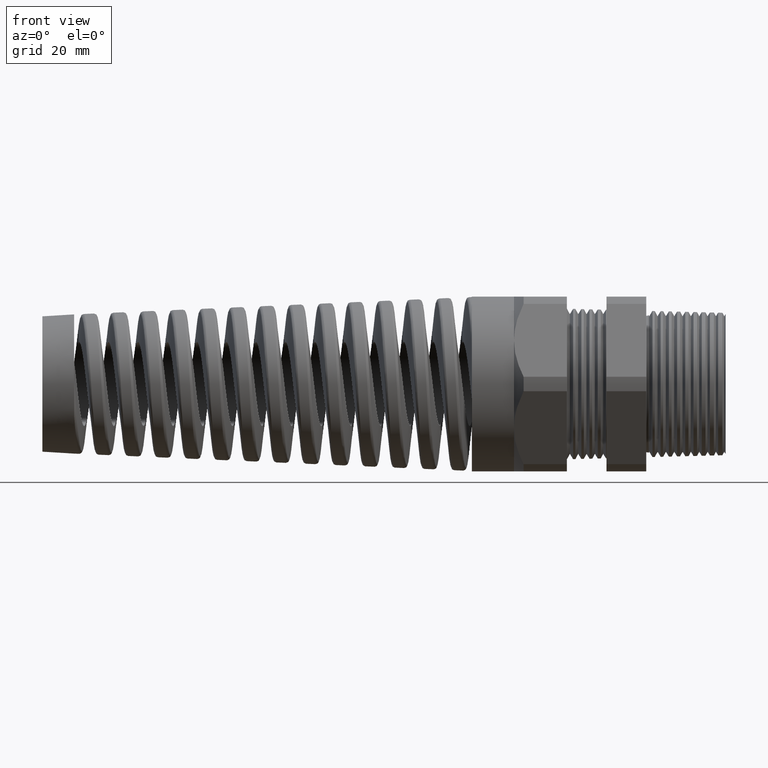
[diagram: clean part render]
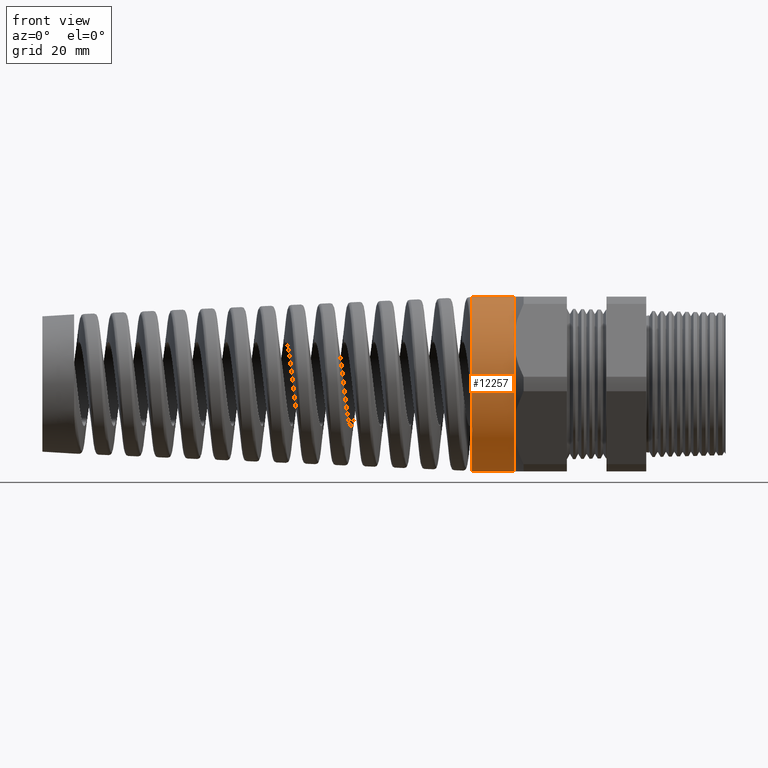
[diagram: same view with one face highlighted and labeled with its STEP entity id]
A machine part, front view. The second image highlights one B-rep face of the part: STEP entity #12257.
In plain terms, the highlighted cylindrical surface (partial cylindrical patch) has radius 16.51 mm, axis along (1, 0, 0).
Its self-contained STEP definition (entity closure, byte-faithful):
#1748 = DIRECTION ( 'NONE',  ( 0.0000000000000000000, 0.0000000000000000000, -1.000000000000000000 ) ) ;
#1749 = DIRECTION ( 'NONE',  ( 1.000000000000000000, 0.0000000000000000000, 0.0000000000000000000 ) ) ;
#1750 = CARTESIAN_POINT ( 'NONE',  ( -1.293779527559055300, 0.0000000000000000000, 0.0000000000000000000 ) ) ;
#1751 = AXIS2_PLACEMENT_3D ( 'NONE', #1750, #1749, #1748 ) ;
#1752 = CIRCLE ( 'NONE', #1751, 0.6500000000000000200 ) ;
#1753 = DIRECTION ( 'NONE',  ( 0.0000000000000000000, 0.0000000000000000000, -1.000000000000000000 ) ) ;
#1754 = DIRECTION ( 'NONE',  ( 1.000000000000000000, 0.0000000000000000000, 0.0000000000000000000 ) ) ;
#1755 = CARTESIAN_POINT ( 'NONE',  ( -1.293779527559055300, 0.0000000000000000000, 0.0000000000000000000 ) ) ;
#1756 = AXIS2_PLACEMENT_3D ( 'NONE', #1755, #1754, #1753 ) ;
#1757 = CIRCLE ( 'NONE', #1756, 0.6500000000000000200 ) ;
#1758 = DIRECTION ( 'NONE',  ( 0.0000000000000000000, 0.0000000000000000000, -1.000000000000000000 ) ) ;
#1759 = DIRECTION ( 'NONE',  ( 1.000000000000000000, 0.0000000000000000000, 0.0000000000000000000 ) ) ;
#1760 = CARTESIAN_POINT ( 'NONE',  ( -1.293779527559055300, 0.0000000000000000000, 0.0000000000000000000 ) ) ;
#1761 = AXIS2_PLACEMENT_3D ( 'NONE', #1760, #1759, #1758 ) ;
#1762 = CIRCLE ( 'NONE', #1761, 0.6500000000000000200 ) ;
#1833 = DIRECTION ( 'NONE',  ( 0.0000000000000000000, 0.0000000000000000000, 1.000000000000000000 ) ) ;
#1834 = DIRECTION ( 'NONE',  ( -1.000000000000000000, 0.0000000000000000000, 0.0000000000000000000 ) ) ;
#1835 = CARTESIAN_POINT ( 'NONE',  ( -1.606986927084337300, 0.0000000000000000000, 0.0000000000000000000 ) ) ;
#1836 = AXIS2_PLACEMENT_3D ( 'NONE', #1835, #1834, #1833 ) ;
#1837 = DIRECTION ( 'NONE',  ( 0.0000000000000000000, 0.0000000000000000000, -1.000000000000000000 ) ) ;
#1838 = DIRECTION ( 'NONE',  ( 1.000000000000000000, 0.0000000000000000000, 0.0000000000000000000 ) ) ;
#1839 = CARTESIAN_POINT ( 'NONE',  ( 0.0000000000000000000, 0.0000000000000000000, 0.0000000000000000000 ) ) ;
#1840 = AXIS2_PLACEMENT_3D ( 'NONE', #1839, #1838, #1837 ) ;
#1841 = CIRCLE ( 'NONE', #1836, 0.6499999999999999100 ) ;
#1842 = CYLINDRICAL_SURFACE ( 'NONE', #1840, 0.6500000000000000200 ) ;
#1843 = FACE_OUTER_BOUND ( 'NONE', #12258, .T. ) ;
#11521 = VERTEX_POINT ( 'NONE', #16195 ) ;
#11522 = VERTEX_POINT ( 'NONE', #16194 ) ;
#11524 = EDGE_CURVE ( 'NONE', #11521, #11526, #16193, .T. ) ;
#11526 = VERTEX_POINT ( 'NONE', #16189 ) ;
#11556 = VERTEX_POINT ( 'NONE', #16200 ) ;
#11558 = EDGE_CURVE ( 'NONE', #11522, #11556, #16199, .T. ) ;
#11737 = VERTEX_POINT ( 'NONE', #16590 ) ;
#11747 = VERTEX_POINT ( 'NONE', #16621 ) ;
#12194 = ORIENTED_EDGE ( 'NONE', *, *, #12195, .F. ) ;
#12195 = EDGE_CURVE ( 'NONE', #11737, #11556, #1762, .T. ) ;
#12196 = ORIENTED_EDGE ( 'NONE', *, *, #12197, .F. ) ;
#12197 = EDGE_CURVE ( 'NONE', #11747, #11737, #1757, .T. ) ;
#12198 = ORIENTED_EDGE ( 'NONE', *, *, #12199, .F. ) ;
#12199 = EDGE_CURVE ( 'NONE', #11526, #11747, #1752, .T. ) ;
#12257 = ADVANCED_FACE ( 'NONE', ( #1843 ), #1842, .T. ) ;
#12258 = EDGE_LOOP ( 'NONE', ( #12259, #12260, #12262, #12194, #12196, #12198 ) ) ;
#12259 = ORIENTED_EDGE ( 'NONE', *, *, #11524, .F. ) ;
#12260 = ORIENTED_EDGE ( 'NONE', *, *, #12261, .F. ) ;
#12261 = EDGE_CURVE ( 'NONE', #11522, #11521, #1841, .T. ) ;
#12262 = ORIENTED_EDGE ( 'NONE', *, *, #11558, .T. ) ;
#16189 = CARTESIAN_POINT ( 'NONE',  ( -1.293779527559055300, 0.0000000000000000000, 0.6499999999999999100 ) ) ;
#16190 = DIRECTION ( 'NONE',  ( 1.000000000000000000, 0.0000000000000000000, 0.0000000000000000000 ) ) ;
#16191 = VECTOR ( 'NONE', #16190, 39.37007874015748100 ) ;
#16192 = CARTESIAN_POINT ( 'NONE',  ( 0.0000000000000000000, 7.960204194457796700E-017, 0.6500000000000000200 ) ) ;
#16193 = LINE ( 'NONE', #16192, #16191 ) ;
#16194 = CARTESIAN_POINT ( 'NONE',  ( -1.606986927084337300, 0.0000000000000000000, -0.6499999999999999100 ) ) ;
#16195 = CARTESIAN_POINT ( 'NONE',  ( -1.606986927084337300, 7.960204194457796700E-017, 0.6499999999999999100 ) ) ;
#16198 = CARTESIAN_POINT ( 'NONE',  ( 0.0000000000000000000, 0.0000000000000000000, -0.6500000000000000200 ) ) ;
#16199 = LINE ( 'NONE', #16198, #16261 ) ;
#16200 = CARTESIAN_POINT ( 'NONE',  ( -1.293779527559055300, 0.0000000000000000000, -0.6500000000000001300 ) ) ;
#16260 = DIRECTION ( 'NONE',  ( 1.000000000000000000, 0.0000000000000000000, 0.0000000000000000000 ) ) ;
#16261 = VECTOR ( 'NONE', #16260, 39.37007874015748100 ) ;
#16590 = CARTESIAN_POINT ( 'NONE',  ( -1.293779527559055300, -0.5629165124598851700, -0.3250000000000002300 ) ) ;
#16621 = CARTESIAN_POINT ( 'NONE',  ( -1.293779527559055300, -0.5629165124598852800, 0.3249999999999997900 ) ) ;